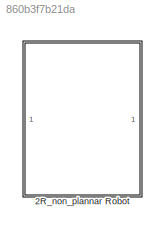
MODEL slx_860b3f7b21da
KIND model
CONFIG AbsTol = auto
CONFIG EnableMultiTasking = off
CONFIG FixedStep = auto
CONFIG MaxStep = auto
CONFIG MinStep = auto
CONFIG RelTol = 1e-3
CONFIG SampleTimeConstraint = Unconstrained
CONFIG SolverName = VariableStepAuto
CONFIG StartTime = 0.0
CONFIG StopTime = 10.0
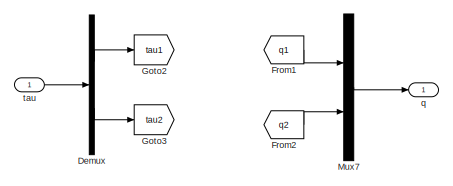
[diagram: 2R_non_plannar Robot - part 1/4, top center region]
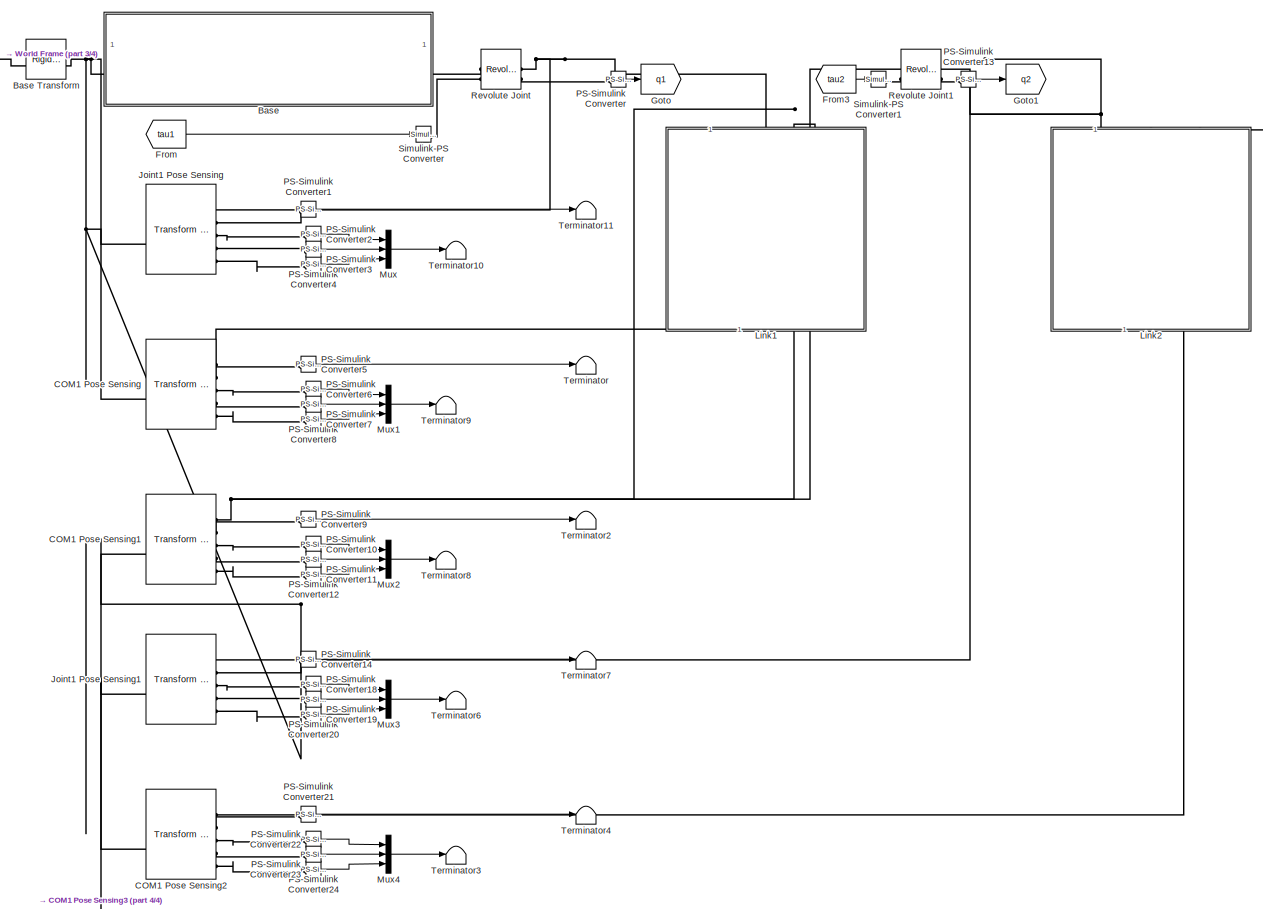
[diagram: 2R_non_plannar Robot - part 2/4, full width, middle band]
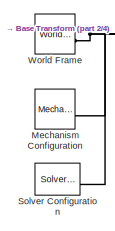
[diagram: 2R_non_plannar Robot - part 3/4, top left region]
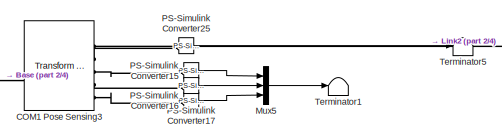
[diagram: 2R_non_plannar Robot - part 4/4, bottom center region]
BLOCK [SubSystem] 2R_non_plannar Robot
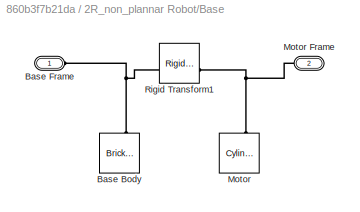
BLOCK [SubSystem] 2R_non_plannar Robot/Base
BLOCK [Reference] 2R_non_plannar Robot/Base Transform  REF=sm_lib/Frames and
Transforms/Rigid
Transform
  SourceBlock = sm_lib/Frames and\nTransforms/Rigid\nTransform
  SourceType = Rigid\nTransform
BLOCK [Reference] 2R_non_plannar Robot/Base/Base Body  REF=sm_lib/Body Elements/Brick Solid
  NameLocation = right
  SourceBlock = sm_lib/Body Elements/Brick Solid
  SourceType = Brick Solid
BLOCK [PMIOPort] 2R_non_plannar Robot/Base/Base Frame
  Side = Left
BLOCK [Reference] 2R_non_plannar Robot/Base/Motor  REF=sm_lib/Body Elements/Cylindrical Solid
  NameLocation = right
  SourceBlock = sm_lib/Body Elements/Cylindrical Solid
  SourceType = Cylindrical Solid
BLOCK [PMIOPort] 2R_non_plannar Robot/Base/Motor Frame
  Port = 2
  Side = Right
BLOCK [Reference] 2R_non_plannar Robot/Base/Rigid Transform1  REF=sm_lib/Frames and
Transforms/Rigid
Transform
  SourceBlock = sm_lib/Frames and\nTransforms/Rigid\nTransform
  SourceType = Rigid\nTransform
BLOCK [Reference] 2R_non_plannar Robot/COM1 Pose Sensing  REF=sm_lib/Frames and
Transforms/Transform
Sensor
  SourceBlock = sm_lib/Frames and\nTransforms/Transform\nSensor
  SourceType = Transform\nSensor
BLOCK [Reference] 2R_non_plannar Robot/COM1 Pose Sensing1  REF=sm_lib/Frames and
Transforms/Transform
Sensor
  SourceBlock = sm_lib/Frames and\nTransforms/Transform\nSensor
  SourceType = Transform\nSensor
BLOCK [Reference] 2R_non_plannar Robot/COM1 Pose Sensing2  REF=sm_lib/Frames and
Transforms/Transform
Sensor
  SourceBlock = sm_lib/Frames and\nTransforms/Transform\nSensor
  SourceType = Transform\nSensor
BLOCK [Reference] 2R_non_plannar Robot/COM1 Pose Sensing3  REF=sm_lib/Frames and
Transforms/Transform
Sensor
  SourceBlock = sm_lib/Frames and\nTransforms/Transform\nSensor
  SourceType = Transform\nSensor
BLOCK [Demux] 2R_non_plannar Robot/Demux
  Outputs = 2
BLOCK [From] 2R_non_plannar Robot/From
  GotoTag = tau1
BLOCK [From] 2R_non_plannar Robot/From1
  GotoTag = q1
BLOCK [From] 2R_non_plannar Robot/From2
  GotoTag = q2
BLOCK [From] 2R_non_plannar Robot/From3
  GotoTag = tau2
BLOCK [Goto] 2R_non_plannar Robot/Goto
  GotoTag = q1
BLOCK [Goto] 2R_non_plannar Robot/Goto1
  GotoTag = q2
BLOCK [Goto] 2R_non_plannar Robot/Goto2
  GotoTag = tau1
BLOCK [Goto] 2R_non_plannar Robot/Goto3
  GotoTag = tau2
BLOCK [Reference] 2R_non_plannar Robot/Joint1 Pose Sensing  REF=sm_lib/Frames and
Transforms/Transform
Sensor
  SourceBlock = sm_lib/Frames and\nTransforms/Transform\nSensor
  SourceType = Transform\nSensor
BLOCK [Reference] 2R_non_plannar Robot/Joint1 Pose Sensing1  REF=sm_lib/Frames and
Transforms/Transform
Sensor
  SourceBlock = sm_lib/Frames and\nTransforms/Transform\nSensor
  SourceType = Transform\nSensor
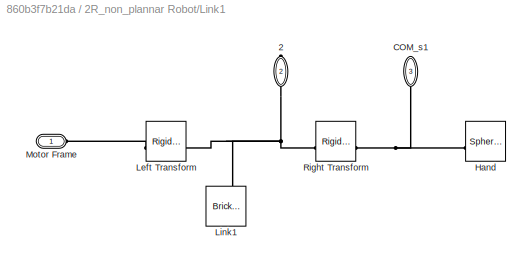
BLOCK [SubSystem] 2R_non_plannar Robot/Link1
  NameLocation = left
BLOCK [PMIOPort] 2R_non_plannar Robot/Link1/2
  NameLocation = right
  Port = 2
  Side = Right
BLOCK [PMIOPort] 2R_non_plannar Robot/Link1/COM_s1
  NameLocation = right
  Port = 3
  Side = Left
BLOCK [Reference] 2R_non_plannar Robot/Link1/Hand  REF=sm_lib/Body Elements/Spherical Solid
  NameLocation = top
  SourceBlock = sm_lib/Body Elements/Spherical Solid
  SourceType = Spherical Solid
BLOCK [Reference] 2R_non_plannar Robot/Link1/Left Transform  REF=sm_lib/Frames and
Transforms/Rigid
Transform
  NameLocation = top
  SourceBlock = sm_lib/Frames and\nTransforms/Rigid\nTransform
  SourceType = Rigid\nTransform
BLOCK [Reference] 2R_non_plannar Robot/Link1/Link1  REF=sm_lib/Body Elements/Brick Solid
  NameLocation = right
  SourceBlock = sm_lib/Body Elements/Brick Solid
  SourceType = Brick Solid
BLOCK [PMIOPort] 2R_non_plannar Robot/Link1/Motor Frame
  Side = Left
BLOCK [Reference] 2R_non_plannar Robot/Link1/Right Transform  REF=sm_lib/Frames and
Transforms/Rigid
Transform
  SourceBlock = sm_lib/Frames and\nTransforms/Rigid\nTransform
  SourceType = Rigid\nTransform
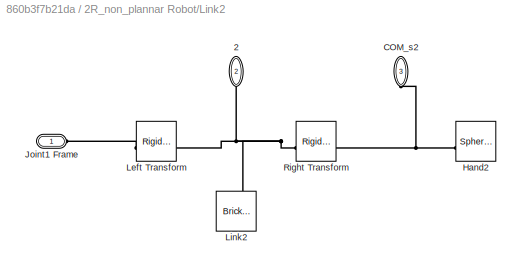
BLOCK [SubSystem] 2R_non_plannar Robot/Link2
  NameLocation = left
BLOCK [PMIOPort] 2R_non_plannar Robot/Link2/2
  NameLocation = right
  Port = 2
  Side = Right
BLOCK [PMIOPort] 2R_non_plannar Robot/Link2/COM_s2
  NameLocation = right
  Port = 3
  Side = Left
BLOCK [Reference] 2R_non_plannar Robot/Link2/Hand2  REF=sm_lib/Body Elements/Spherical Solid
  NameLocation = top
  SourceBlock = sm_lib/Body Elements/Spherical Solid
  SourceType = Spherical Solid
BLOCK [PMIOPort] 2R_non_plannar Robot/Link2/Joint1 Frame
  Side = Left
BLOCK [Reference] 2R_non_plannar Robot/Link2/Left Transform  REF=sm_lib/Frames and
Transforms/Rigid
Transform
  NameLocation = top
  SourceBlock = sm_lib/Frames and\nTransforms/Rigid\nTransform
  SourceType = Rigid\nTransform
BLOCK [Reference] 2R_non_plannar Robot/Link2/Link2  REF=sm_lib/Body Elements/Brick Solid
  NameLocation = right
  SourceBlock = sm_lib/Body Elements/Brick Solid
  SourceType = Brick Solid
BLOCK [Reference] 2R_non_plannar Robot/Link2/Right Transform  REF=sm_lib/Frames and
Transforms/Rigid
Transform
  SourceBlock = sm_lib/Frames and\nTransforms/Rigid\nTransform
  SourceType = Rigid\nTransform
BLOCK [Reference] 2R_non_plannar Robot/Mechanism Configuration  REF=sm_lib/Utilities/Mechanism
Configuration
  SourceBlock = sm_lib/Utilities/Mechanism\nConfiguration
  SourceType = Mechanism\nConfiguration
BLOCK [Mux] 2R_non_plannar Robot/Mux
  DisplayOption = bar
  Inputs = 3
BLOCK [Mux] 2R_non_plannar Robot/Mux1
  DisplayOption = bar
  Inputs = 3
BLOCK [Mux] 2R_non_plannar Robot/Mux2
  DisplayOption = bar
  Inputs = 3
BLOCK [Mux] 2R_non_plannar Robot/Mux3
  DisplayOption = bar
  Inputs = 3
BLOCK [Mux] 2R_non_plannar Robot/Mux4
  DisplayOption = bar
  Inputs = 3
BLOCK [Mux] 2R_non_plannar Robot/Mux5
  DisplayOption = bar
  Inputs = 3
BLOCK [Mux] 2R_non_plannar Robot/Mux7
  DisplayOption = bar
  Inputs = 2
BLOCK [Reference] 2R_non_plannar Robot/PS-Simulink Converter  REF=nesl_utility/PS-Simulink
Converter
  SourceBlock = nesl_utility/PS-Simulink\nConverter
  SourceType = PS-Simulink\nConverter
BLOCK [Reference] 2R_non_plannar Robot/PS-Simulink Converter1  REF=nesl_utility/PS-Simulink
Converter
  SourceBlock = nesl_utility/PS-Simulink\nConverter
  SourceType = PS-Simulink\nConverter
BLOCK [Reference] 2R_non_plannar Robot/PS-Simulink Converter10  REF=nesl_utility/PS-Simulink
Converter
  SourceBlock = nesl_utility/PS-Simulink\nConverter
  SourceType = PS-Simulink\nConverter
BLOCK [Reference] 2R_non_plannar Robot/PS-Simulink Converter11  REF=nesl_utility/PS-Simulink
Converter
  SourceBlock = nesl_utility/PS-Simulink\nConverter
  SourceType = PS-Simulink\nConverter
BLOCK [Reference] 2R_non_plannar Robot/PS-Simulink Converter12  REF=nesl_utility/PS-Simulink
Converter
  SourceBlock = nesl_utility/PS-Simulink\nConverter
  SourceType = PS-Simulink\nConverter
BLOCK [Reference] 2R_non_plannar Robot/PS-Simulink Converter13  REF=nesl_utility/PS-Simulink
Converter
  SourceBlock = nesl_utility/PS-Simulink\nConverter
  SourceType = PS-Simulink\nConverter
BLOCK [Reference] 2R_non_plannar Robot/PS-Simulink Converter14  REF=nesl_utility/PS-Simulink
Converter
  SourceBlock = nesl_utility/PS-Simulink\nConverter
  SourceType = PS-Simulink\nConverter
BLOCK [Reference] 2R_non_plannar Robot/PS-Simulink Converter15  REF=nesl_utility/PS-Simulink
Converter
  SourceBlock = nesl_utility/PS-Simulink\nConverter
  SourceType = PS-Simulink\nConverter
BLOCK [Reference] 2R_non_plannar Robot/PS-Simulink Converter16  REF=nesl_utility/PS-Simulink
Converter
  SourceBlock = nesl_utility/PS-Simulink\nConverter
  SourceType = PS-Simulink\nConverter
BLOCK [Reference] 2R_non_plannar Robot/PS-Simulink Converter17  REF=nesl_utility/PS-Simulink
Converter
  SourceBlock = nesl_utility/PS-Simulink\nConverter
  SourceType = PS-Simulink\nConverter
BLOCK [Reference] 2R_non_plannar Robot/PS-Simulink Converter18  REF=nesl_utility/PS-Simulink
Converter
  SourceBlock = nesl_utility/PS-Simulink\nConverter
  SourceType = PS-Simulink\nConverter
BLOCK [Reference] 2R_non_plannar Robot/PS-Simulink Converter19  REF=nesl_utility/PS-Simulink
Converter
  SourceBlock = nesl_utility/PS-Simulink\nConverter
  SourceType = PS-Simulink\nConverter
BLOCK [Reference] 2R_non_plannar Robot/PS-Simulink Converter2  REF=nesl_utility/PS-Simulink
Converter
  SourceBlock = nesl_utility/PS-Simulink\nConverter
  SourceType = PS-Simulink\nConverter
BLOCK [Reference] 2R_non_plannar Robot/PS-Simulink Converter20  REF=nesl_utility/PS-Simulink
Converter
  SourceBlock = nesl_utility/PS-Simulink\nConverter
  SourceType = PS-Simulink\nConverter
BLOCK [Reference] 2R_non_plannar Robot/PS-Simulink Converter21  REF=nesl_utility/PS-Simulink
Converter
  SourceBlock = nesl_utility/PS-Simulink\nConverter
  SourceType = PS-Simulink\nConverter
BLOCK [Reference] 2R_non_plannar Robot/PS-Simulink Converter22  REF=nesl_utility/PS-Simulink
Converter
  SourceBlock = nesl_utility/PS-Simulink\nConverter
  SourceType = PS-Simulink\nConverter
BLOCK [Reference] 2R_non_plannar Robot/PS-Simulink Converter23  REF=nesl_utility/PS-Simulink
Converter
  SourceBlock = nesl_utility/PS-Simulink\nConverter
  SourceType = PS-Simulink\nConverter
BLOCK [Reference] 2R_non_plannar Robot/PS-Simulink Converter24  REF=nesl_utility/PS-Simulink
Converter
  SourceBlock = nesl_utility/PS-Simulink\nConverter
  SourceType = PS-Simulink\nConverter
BLOCK [Reference] 2R_non_plannar Robot/PS-Simulink Converter25  REF=nesl_utility/PS-Simulink
Converter
  SourceBlock = nesl_utility/PS-Simulink\nConverter
  SourceType = PS-Simulink\nConverter
BLOCK [Reference] 2R_non_plannar Robot/PS-Simulink Converter3  REF=nesl_utility/PS-Simulink
Converter
  SourceBlock = nesl_utility/PS-Simulink\nConverter
  SourceType = PS-Simulink\nConverter
BLOCK [Reference] 2R_non_plannar Robot/PS-Simulink Converter4  REF=nesl_utility/PS-Simulink
Converter
  SourceBlock = nesl_utility/PS-Simulink\nConverter
  SourceType = PS-Simulink\nConverter
BLOCK [Reference] 2R_non_plannar Robot/PS-Simulink Converter5  REF=nesl_utility/PS-Simulink
Converter
  SourceBlock = nesl_utility/PS-Simulink\nConverter
  SourceType = PS-Simulink\nConverter
BLOCK [Reference] 2R_non_plannar Robot/PS-Simulink Converter6  REF=nesl_utility/PS-Simulink
Converter
  SourceBlock = nesl_utility/PS-Simulink\nConverter
  SourceType = PS-Simulink\nConverter
BLOCK [Reference] 2R_non_plannar Robot/PS-Simulink Converter7  REF=nesl_utility/PS-Simulink
Converter
  SourceBlock = nesl_utility/PS-Simulink\nConverter
  SourceType = PS-Simulink\nConverter
BLOCK [Reference] 2R_non_plannar Robot/PS-Simulink Converter8  REF=nesl_utility/PS-Simulink
Converter
  SourceBlock = nesl_utility/PS-Simulink\nConverter
  SourceType = PS-Simulink\nConverter
BLOCK [Reference] 2R_non_plannar Robot/PS-Simulink Converter9  REF=nesl_utility/PS-Simulink
Converter
  SourceBlock = nesl_utility/PS-Simulink\nConverter
  SourceType = PS-Simulink\nConverter
BLOCK [Reference] 2R_non_plannar Robot/Revolute Joint  REF=sm_lib/Joints/Revolute Joint
  SourceBlock = sm_lib/Joints/Revolute Joint
  SourceType = Revolute Joint
BLOCK [Reference] 2R_non_plannar Robot/Revolute Joint1  REF=sm_lib/Joints/Revolute Joint
  SourceBlock = sm_lib/Joints/Revolute Joint
  SourceType = Revolute Joint
BLOCK [Reference] 2R_non_plannar Robot/Simulink-PS Converter  REF=nesl_utility/Simulink-PS
Converter
  SourceBlock = nesl_utility/Simulink-PS\nConverter
  SourceType = Simulink-PS\nConverter
BLOCK [Reference] 2R_non_plannar Robot/Simulink-PS Converter1  REF=nesl_utility/Simulink-PS
Converter
  SourceBlock = nesl_utility/Simulink-PS\nConverter
  SourceType = Simulink-PS\nConverter
BLOCK [Reference] 2R_non_plannar Robot/Solver Configuration  REF=nesl_utility/Solver
Configuration
  SourceBlock = nesl_utility/Solver\nConfiguration
  SourceType = Solver\nConfiguration
BLOCK [Terminator] 2R_non_plannar Robot/Terminator
BLOCK [Terminator] 2R_non_plannar Robot/Terminator1
BLOCK [Terminator] 2R_non_plannar Robot/Terminator10
BLOCK [Terminator] 2R_non_plannar Robot/Terminator11
BLOCK [Terminator] 2R_non_plannar Robot/Terminator2
BLOCK [Terminator] 2R_non_plannar Robot/Terminator3
BLOCK [Terminator] 2R_non_plannar Robot/Terminator4
BLOCK [Terminator] 2R_non_plannar Robot/Terminator5
BLOCK [Terminator] 2R_non_plannar Robot/Terminator6
BLOCK [Terminator] 2R_non_plannar Robot/Terminator7
BLOCK [Terminator] 2R_non_plannar Robot/Terminator8
BLOCK [Terminator] 2R_non_plannar Robot/Terminator9
BLOCK [Reference] 2R_non_plannar Robot/World Frame  REF=sm_lib/Frames and
Transforms/World Frame
  SourceBlock = sm_lib/Frames and\nTransforms/World Frame
  SourceType = World Frame
BLOCK [Outport] 2R_non_plannar Robot/q
BLOCK [Inport] 2R_non_plannar Robot/tau
LINE 2R_non_plannar Robot/Demux:1 -> 2R_non_plannar Robot/Goto2:1
LINE 2R_non_plannar Robot/Demux:2 -> 2R_non_plannar Robot/Goto3:1
LINE 2R_non_plannar Robot/From1:1 -> 2R_non_plannar Robot/Mux7:1
LINE 2R_non_plannar Robot/From2:1 -> 2R_non_plannar Robot/Mux7:2
LINE 2R_non_plannar Robot/From3:1 -> 2R_non_plannar Robot/Simulink-PS Converter1:1
LINE 2R_non_plannar Robot/From:1 -> 2R_non_plannar Robot/Simulink-PS Converter:1
LINE 2R_non_plannar Robot/Mux1:1 -> 2R_non_plannar Robot/Terminator9:1
LINE 2R_non_plannar Robot/Mux2:1 -> 2R_non_plannar Robot/Terminator8:1
LINE 2R_non_plannar Robot/Mux3:1 -> 2R_non_plannar Robot/Terminator6:1
LINE 2R_non_plannar Robot/Mux4:1 -> 2R_non_plannar Robot/Terminator3:1
LINE 2R_non_plannar Robot/Mux5:1 -> 2R_non_plannar Robot/Terminator1:1
LINE 2R_non_plannar Robot/Mux7:1 -> 2R_non_plannar Robot/q:1
LINE 2R_non_plannar Robot/Mux:1 -> 2R_non_plannar Robot/Terminator10:1
LINE 2R_non_plannar Robot/PS-Simulink Converter10:1 -> 2R_non_plannar Robot/Mux2:1
LINE 2R_non_plannar Robot/PS-Simulink Converter11:1 -> 2R_non_plannar Robot/Mux2:3
LINE 2R_non_plannar Robot/PS-Simulink Converter12:1 -> 2R_non_plannar Robot/Mux2:2
LINE 2R_non_plannar Robot/PS-Simulink Converter13:1 -> 2R_non_plannar Robot/Goto1:1
LINE 2R_non_plannar Robot/PS-Simulink Converter14:1 -> 2R_non_plannar Robot/Terminator7:1
LINE 2R_non_plannar Robot/PS-Simulink Converter15:1 -> 2R_non_plannar Robot/Mux5:1
LINE 2R_non_plannar Robot/PS-Simulink Converter16:1 -> 2R_non_plannar Robot/Mux5:3
LINE 2R_non_plannar Robot/PS-Simulink Converter17:1 -> 2R_non_plannar Robot/Mux5:2
LINE 2R_non_plannar Robot/PS-Simulink Converter18:1 -> 2R_non_plannar Robot/Mux3:1
LINE 2R_non_plannar Robot/PS-Simulink Converter19:1 -> 2R_non_plannar Robot/Mux3:3
LINE 2R_non_plannar Robot/PS-Simulink Converter1:1 -> 2R_non_plannar Robot/Terminator11:1
LINE 2R_non_plannar Robot/PS-Simulink Converter20:1 -> 2R_non_plannar Robot/Mux3:2
LINE 2R_non_plannar Robot/PS-Simulink Converter21:1 -> 2R_non_plannar Robot/Terminator4:1
LINE 2R_non_plannar Robot/PS-Simulink Converter22:1 -> 2R_non_plannar Robot/Mux4:1
LINE 2R_non_plannar Robot/PS-Simulink Converter23:1 -> 2R_non_plannar Robot/Mux4:3
LINE 2R_non_plannar Robot/PS-Simulink Converter24:1 -> 2R_non_plannar Robot/Mux4:2
LINE 2R_non_plannar Robot/PS-Simulink Converter25:1 -> 2R_non_plannar Robot/Terminator5:1
LINE 2R_non_plannar Robot/PS-Simulink Converter2:1 -> 2R_non_plannar Robot/Mux:1
LINE 2R_non_plannar Robot/PS-Simulink Converter3:1 -> 2R_non_plannar Robot/Mux:3
LINE 2R_non_plannar Robot/PS-Simulink Converter4:1 -> 2R_non_plannar Robot/Mux:2
LINE 2R_non_plannar Robot/PS-Simulink Converter5:1 -> 2R_non_plannar Robot/Terminator:1
LINE 2R_non_plannar Robot/PS-Simulink Converter6:1 -> 2R_non_plannar Robot/Mux1:1
LINE 2R_non_plannar Robot/PS-Simulink Converter7:1 -> 2R_non_plannar Robot/Mux1:3
LINE 2R_non_plannar Robot/PS-Simulink Converter8:1 -> 2R_non_plannar Robot/Mux1:2
LINE 2R_non_plannar Robot/PS-Simulink Converter9:1 -> 2R_non_plannar Robot/Terminator2:1
LINE 2R_non_plannar Robot/PS-Simulink Converter:1 -> 2R_non_plannar Robot/Goto:1
LINE 2R_non_plannar Robot/tau:1 -> 2R_non_plannar Robot/Demux:1
PNET net1: 2R_non_plannar Robot/Base Transform:LConn1 -- 2R_non_plannar Robot/Mechanism Configuration:RConn1 -- 2R_non_plannar Robot/Solver Configuration:RConn1 -- 2R_non_plannar Robot/World Frame:RConn1
PNET net2: 2R_non_plannar Robot/Base Transform:RConn1 -- 2R_non_plannar Robot/Base:LConn1 -- 2R_non_plannar Robot/COM1 Pose Sensing1:LConn1 -- 2R_non_plannar Robot/COM1 Pose Sensing2:LConn1 -- 2R_non_plannar Robot/COM1 Pose Sensing3:LConn1 -- 2R_non_plannar Robot/COM1 Pose Sensing:LConn1 -- 2R_non_plannar Robot/Joint1 Pose Sensing1:LConn1 -- 2R_non_plannar Robot/Joint1 Pose Sensing:LConn1
PNET net3: 2R_non_plannar Robot/Base/Base Body:RConn1 -- 2R_non_plannar Robot/Base/Base Frame:RConn1 -- 2R_non_plannar Robot/Base/Rigid Transform1:LConn1
PNET net4: 2R_non_plannar Robot/Base/Motor Frame:RConn1 -- 2R_non_plannar Robot/Base/Motor:RConn1 -- 2R_non_plannar Robot/Base/Rigid Transform1:RConn1
PLINE 2R_non_plannar Robot/Base:RConn1 -- 2R_non_plannar Robot/Revolute Joint:LConn1
PNET net5: 2R_non_plannar Robot/COM1 Pose Sensing1:RConn1 -- 2R_non_plannar Robot/Link1:LConn2 -- 2R_non_plannar Robot/Revolute Joint1:LConn1
PLINE 2R_non_plannar Robot/COM1 Pose Sensing1:RConn2 -- 2R_non_plannar Robot/PS-Simulink Converter9:LConn1
PLINE 2R_non_plannar Robot/COM1 Pose Sensing1:RConn3 -- 2R_non_plannar Robot/PS-Simulink Converter10:LConn1
PLINE 2R_non_plannar Robot/COM1 Pose Sensing1:RConn4 -- 2R_non_plannar Robot/PS-Simulink Converter12:LConn1
PLINE 2R_non_plannar Robot/COM1 Pose Sensing1:RConn5 -- 2R_non_plannar Robot/PS-Simulink Converter11:LConn1
PLINE 2R_non_plannar Robot/COM1 Pose Sensing2:RConn1 -- 2R_non_plannar Robot/Link2:RConn1
PLINE 2R_non_plannar Robot/COM1 Pose Sensing2:RConn2 -- 2R_non_plannar Robot/PS-Simulink Converter21:LConn1
PLINE 2R_non_plannar Robot/COM1 Pose Sensing2:RConn3 -- 2R_non_plannar Robot/PS-Simulink Converter22:LConn1
PLINE 2R_non_plannar Robot/COM1 Pose Sensing2:RConn4 -- 2R_non_plannar Robot/PS-Simulink Converter24:LConn1
PLINE 2R_non_plannar Robot/COM1 Pose Sensing2:RConn5 -- 2R_non_plannar Robot/PS-Simulink Converter23:LConn1
PLINE 2R_non_plannar Robot/COM1 Pose Sensing3:RConn1 -- 2R_non_plannar Robot/Link2:LConn2
PLINE 2R_non_plannar Robot/COM1 Pose Sensing3:RConn2 -- 2R_non_plannar Robot/PS-Simulink Converter25:LConn1
PLINE 2R_non_plannar Robot/COM1 Pose Sensing3:RConn3 -- 2R_non_plannar Robot/PS-Simulink Converter15:LConn1
PLINE 2R_non_plannar Robot/COM1 Pose Sensing3:RConn4 -- 2R_non_plannar Robot/PS-Simulink Converter17:LConn1
PLINE 2R_non_plannar Robot/COM1 Pose Sensing3:RConn5 -- 2R_non_plannar Robot/PS-Simulink Converter16:LConn1
PLINE 2R_non_plannar Robot/COM1 Pose Sensing:RConn1 -- 2R_non_plannar Robot/Link1:RConn1
PLINE 2R_non_plannar Robot/COM1 Pose Sensing:RConn2 -- 2R_non_plannar Robot/PS-Simulink Converter5:LConn1
PLINE 2R_non_plannar Robot/COM1 Pose Sensing:RConn3 -- 2R_non_plannar Robot/PS-Simulink Converter6:LConn1
PLINE 2R_non_plannar Robot/COM1 Pose Sensing:RConn4 -- 2R_non_plannar Robot/PS-Simulink Converter8:LConn1
PLINE 2R_non_plannar Robot/COM1 Pose Sensing:RConn5 -- 2R_non_plannar Robot/PS-Simulink Converter7:LConn1
PNET net6: 2R_non_plannar Robot/Joint1 Pose Sensing1:RConn1 -- 2R_non_plannar Robot/Link2:LConn1 -- 2R_non_plannar Robot/Revolute Joint1:RConn1
PLINE 2R_non_plannar Robot/Joint1 Pose Sensing1:RConn2 -- 2R_non_plannar Robot/PS-Simulink Converter14:LConn1
PLINE 2R_non_plannar Robot/Joint1 Pose Sensing1:RConn3 -- 2R_non_plannar Robot/PS-Simulink Converter18:LConn1
PLINE 2R_non_plannar Robot/Joint1 Pose Sensing1:RConn4 -- 2R_non_plannar Robot/PS-Simulink Converter20:LConn1
PLINE 2R_non_plannar Robot/Joint1 Pose Sensing1:RConn5 -- 2R_non_plannar Robot/PS-Simulink Converter19:LConn1
PNET net7: 2R_non_plannar Robot/Joint1 Pose Sensing:RConn1 -- 2R_non_plannar Robot/Link1:LConn1 -- 2R_non_plannar Robot/Revolute Joint:RConn1
PLINE 2R_non_plannar Robot/Joint1 Pose Sensing:RConn2 -- 2R_non_plannar Robot/PS-Simulink Converter1:LConn1
PLINE 2R_non_plannar Robot/Joint1 Pose Sensing:RConn3 -- 2R_non_plannar Robot/PS-Simulink Converter2:LConn1
PLINE 2R_non_plannar Robot/Joint1 Pose Sensing:RConn4 -- 2R_non_plannar Robot/PS-Simulink Converter4:LConn1
PLINE 2R_non_plannar Robot/Joint1 Pose Sensing:RConn5 -- 2R_non_plannar Robot/PS-Simulink Converter3:LConn1
PNET net8: 2R_non_plannar Robot/Link1/2:RConn1 -- 2R_non_plannar Robot/Link1/Left Transform:LConn1 -- 2R_non_plannar Robot/Link1/Link1:RConn1 -- 2R_non_plannar Robot/Link1/Right Transform:LConn1
PNET net9: 2R_non_plannar Robot/Link1/COM_s1:RConn1 -- 2R_non_plannar Robot/Link1/Hand:RConn1 -- 2R_non_plannar Robot/Link1/Right Transform:RConn1
PLINE 2R_non_plannar Robot/Link1/Left Transform:RConn1 -- 2R_non_plannar Robot/Link1/Motor Frame:RConn1
PNET net10: 2R_non_plannar Robot/Link2/2:RConn1 -- 2R_non_plannar Robot/Link2/Left Transform:LConn1 -- 2R_non_plannar Robot/Link2/Link2:RConn1 -- 2R_non_plannar Robot/Link2/Right Transform:LConn1
PNET net11: 2R_non_plannar Robot/Link2/COM_s2:RConn1 -- 2R_non_plannar Robot/Link2/Hand2:RConn1 -- 2R_non_plannar Robot/Link2/Right Transform:RConn1
PLINE 2R_non_plannar Robot/Link2/Joint1 Frame:RConn1 -- 2R_non_plannar Robot/Link2/Left Transform:RConn1
PLINE 2R_non_plannar Robot/PS-Simulink Converter13:LConn1 -- 2R_non_plannar Robot/Revolute Joint1:RConn2
PLINE 2R_non_plannar Robot/PS-Simulink Converter:LConn1 -- 2R_non_plannar Robot/Revolute Joint:RConn2
PLINE 2R_non_plannar Robot/Revolute Joint1:LConn2 -- 2R_non_plannar Robot/Simulink-PS Converter1:RConn1
PLINE 2R_non_plannar Robot/Revolute Joint:LConn2 -- 2R_non_plannar Robot/Simulink-PS Converter:RConn1
note: PNET lines group multi-terminal physical nets as a canonical sorted terminal list (undirected conserving connections); 2-terminal nets keep the pairwise PLINE form
